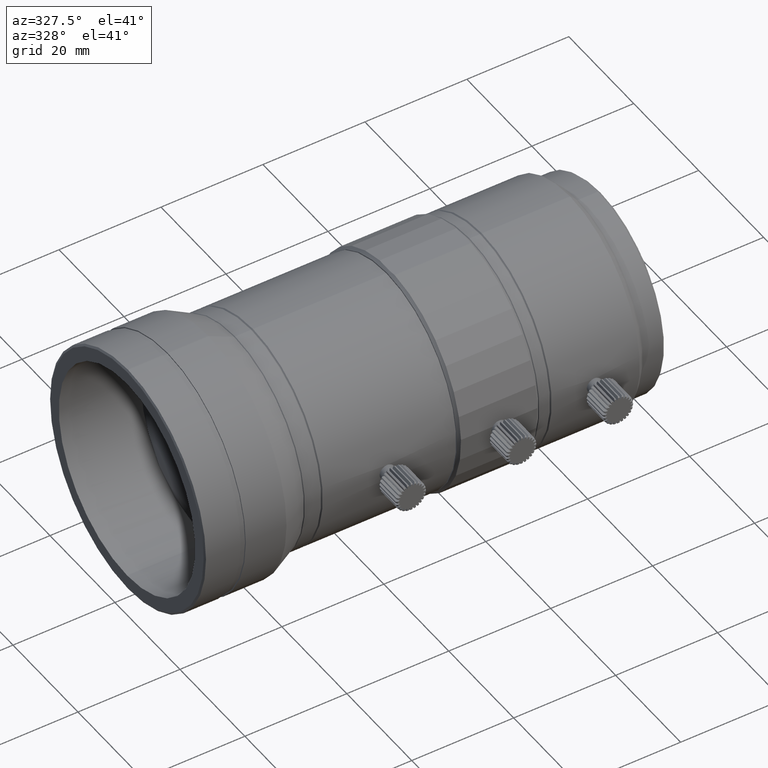
[diagram: clean part render]
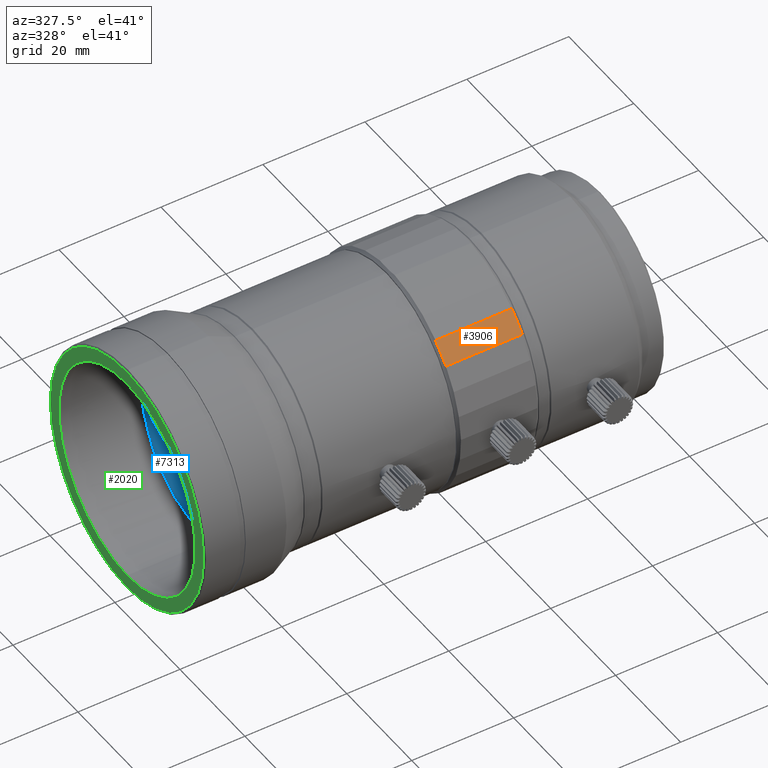
[diagram: same view with three faces highlighted in distinct colors, each labeled with its STEP entity id]
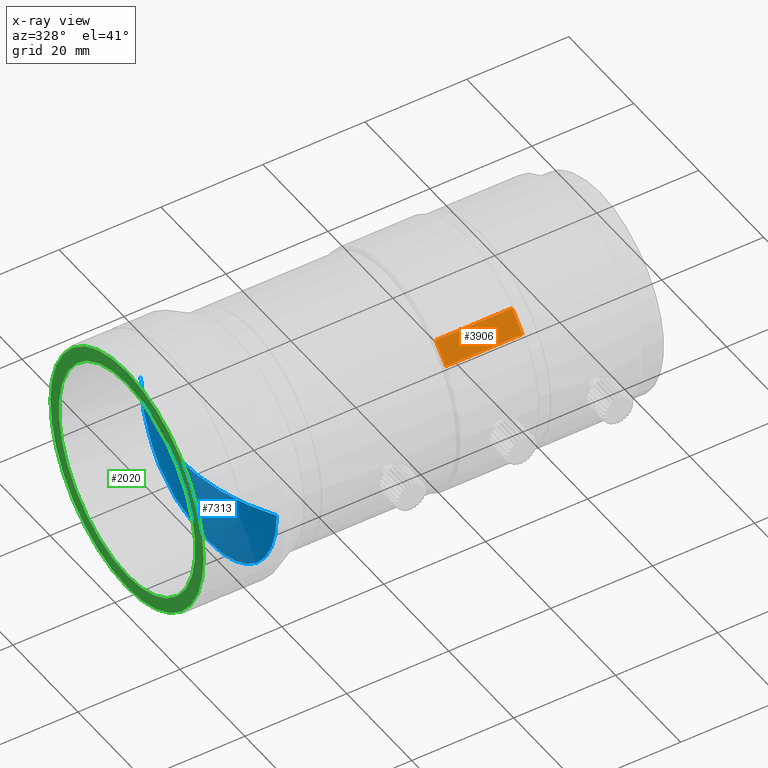
[diagram: x-ray of the same camera — body ghosted, the three highlighted faces saturated]
A machine part, auxiliary view with three faces highlighted in distinct colors.
The next image is the same camera in x-ray (body ghosted, the three faces saturated) — at least one of them is partly hidden behind the body in this view.
Their STEP definitions:

[orange] entity #3906 — the highlighted planar face has unit normal (0, -0.7197, 0.6943).
#108 = CARTESIAN_POINT ( 'NONE',  ( -46.12999999999998835, -17.34346333018421049, 13.53529754806134378 ) ) ;
#404 = FACE_OUTER_BOUND ( 'NONE', #3788, .T. ) ;
#616 = CARTESIAN_POINT ( 'NONE',  ( -46.12999999999999545, -14.15032044589556115, 16.84542760746872858 ) ) ;
#1206 = CARTESIAN_POINT ( 'NONE',  ( -31.13000000000000611, -14.15032044589549010, 16.84542760746879608 ) ) ;
#1462 = EDGE_CURVE ( 'NONE', #15162, #4289, #7521, .T. ) ;
#2187 = DIRECTION ( 'NONE',  ( 1.000000000000000000, -0.000000000000000000, -0.000000000000000000 ) ) ;
#2523 = CARTESIAN_POINT ( 'NONE',  ( -31.13000000000000611, -14.15032044589549010, 16.84542760746879608 ) ) ;
#2585 = CARTESIAN_POINT ( 'NONE',  ( -30.96974907204770489, -16.27908236875463643, 14.63867423453049632 ) ) ;
#2649 = ORIENTED_EDGE ( 'NONE', *, *, #12753, .F. ) ;
#2775 = CARTESIAN_POINT ( 'NONE',  ( -46.12999999999998835, -17.34346333018421049, 13.53529754806134378 ) ) ;
#3788 = EDGE_LOOP ( 'NONE', ( #2649, #11944, #13668, #8107 ) ) ;
#3906 = ADVANCED_FACE ( 'NONE', ( #404 ), #5113, .T. ) ;
#4289 = VERTEX_POINT ( 'NONE', #5461 ) ;
#5113 = PLANE ( 'NONE',  #6270 ) ;
#5461 = CARTESIAN_POINT ( 'NONE',  ( -46.12999999999999545, -14.15032044589556115, 16.84542760746872858 ) ) ;
#5646 = CARTESIAN_POINT ( 'NONE',  ( -31.13000000000000611, -17.34346333018421049, 13.53529754806134378 ) ) ;
#5903 = CARTESIAN_POINT ( 'NONE',  ( -31.13000000000000611, -17.34346333018421049, 13.53529754806134378 ) ) ;
#6019 = DIRECTION ( 'NONE',  ( 1.000000000000000000, -0.000000000000000000, -0.000000000000000000 ) ) ;
#6270 = AXIS2_PLACEMENT_3D ( 'NONE', #13726, #9815, #8659 ) ;
#7521 = B_SPLINE_CURVE_WITH_KNOTS ( 'NONE', 3,
 ( #2775, #11102, #13572, #616 ),
 .UNSPECIFIED., .F., .F.,
 ( 4, 4 ),
 ( 2.778895270411307423E-07, 0.004599530273303731320 ),
 .UNSPECIFIED. ) ;
#8107 = ORIENTED_EDGE ( 'NONE', *, *, #10783, .F. ) ;
#8333 = LINE ( 'NONE', #11877, #15193 ) ;
#8659 = DIRECTION ( 'NONE',  ( 0.000000000000000000, -0.6942743337052080799, -0.7197104623098022902 ) ) ;
#9815 = DIRECTION ( 'NONE',  ( 0.000000000000000000, -0.7197104623098022902, 0.6942743337052080799 ) ) ;
#10341 = VERTEX_POINT ( 'NONE', #2523 ) ;
#10783 = EDGE_CURVE ( 'NONE', #10341, #11549, #10838, .T. ) ;
#10838 = B_SPLINE_CURVE_WITH_KNOTS ( 'NONE', 3,
 ( #1206, #13140, #2585, #5903 ),
 .UNSPECIFIED., .F., .F.,
 ( 4, 4 ),
 ( 2.778895270374293672E-07, 0.004599530273303828465 ),
 .UNSPECIFIED. ) ;
#11102 = CARTESIAN_POINT ( 'NONE',  ( -46.29025092795228602, -16.27908236875466130, 14.63867423453047323 ) ) ;
#11549 = VERTEX_POINT ( 'NONE', #5646 ) ;
#11580 = CARTESIAN_POINT ( 'NONE',  ( -51.22925238377672486, -17.34346333018418918, 13.53529754806136864 ) ) ;
#11651 = LINE ( 'NONE', #11580, #12744 ) ;
#11877 = CARTESIAN_POINT ( 'NONE',  ( -51.22925238377672486, -14.15032044589551319, 16.84542760746877477 ) ) ;
#11944 = ORIENTED_EDGE ( 'NONE', *, *, #1462, .F. ) ;
#12581 = EDGE_CURVE ( 'NONE', #15162, #11549, #11651, .T. ) ;
#12744 = VECTOR ( 'NONE', #2187, 1000.000000000000000 ) ;
#12753 = EDGE_CURVE ( 'NONE', #4289, #10341, #8333, .T. ) ;
#13140 = CARTESIAN_POINT ( 'NONE',  ( -30.96974907204770489, -15.21470140732506415, 15.74205092099964887 ) ) ;
#13572 = CARTESIAN_POINT ( 'NONE',  ( -46.29025092795228602, -15.21470140732511211, 15.74205092099959913 ) ) ;
#13668 = ORIENTED_EDGE ( 'NONE', *, *, #12581, .T. ) ;
#13726 = CARTESIAN_POINT ( 'NONE',  ( -51.22925238377672486, -15.74689188803985651, 15.19036257776506993 ) ) ;
#15162 = VERTEX_POINT ( 'NONE', #108 ) ;
#15193 = VECTOR ( 'NONE', #6019, 1000.000000000000000 ) ;

[blue] entity #7313 — the highlighted spherical surface has radius 40 mm.
#770 = CARTESIAN_POINT ( 'NONE',  ( -47.58591093890157708, -6.938893903907228378E-15, 0.000000000000000000 ) ) ;
#810 = DIRECTION ( 'NONE',  ( 0.000000000000000000, -1.000000000000000000, 1.224646799147353207E-16 ) ) ;
#3098 = DIRECTION ( 'NONE',  ( -1.000000000000000000, -0.000000000000000000, -0.000000000000000000 ) ) ;
#3239 = EDGE_LOOP ( 'NONE', ( #7782, #7476, #15033, #4095 ) ) ;
#3631 = DIRECTION ( 'NONE',  ( 0.000000000000000000, -0.000000000000000000, 1.000000000000000000 ) ) ;
#4095 = ORIENTED_EDGE ( 'NONE', *, *, #13079, .T. ) ;
#4189 = VERTEX_POINT ( 'NONE', #14803 ) ;
#4967 = EDGE_CURVE ( 'NONE', #4189, #10554, #15071, .T. ) ;
#5119 = AXIS2_PLACEMENT_3D ( 'NONE', #14052, #3631, #11647 ) ;
#5660 = CARTESIAN_POINT ( 'NONE',  ( -87.58591093890159129, -4.489600305612521470E-15, 0.000000000000000000 ) ) ;
#5674 = CARTESIAN_POINT ( 'NONE',  ( -81.62999999999999545, 2.571758278209440083E-15, -20.99999999999998579 ) ) ;
#5722 = EDGE_CURVE ( 'NONE', #11061, #14944, #13384, .T. ) ;
#5765 = DIRECTION ( 'NONE',  ( -1.000000000000000000, 0.000000000000000000, 0.000000000000000000 ) ) ;
#6442 = CARTESIAN_POINT ( 'NONE',  ( -81.62999999999998124, -20.99999999999998934, 2.571758278209440083E-15 ) ) ;
#6632 = DIRECTION ( 'NONE',  ( -1.000000000000000000, -0.000000000000000000, -0.000000000000000000 ) ) ;
#6947 = SPHERICAL_SURFACE ( 'NONE', #5119, 40.00000000000000711 ) ;
#7313 = ADVANCED_FACE ( 'NONE', ( #9481 ), #6947, .T. ) ;
#7476 = ORIENTED_EDGE ( 'NONE', *, *, #10218, .T. ) ;
#7737 = DIRECTION ( 'NONE',  ( 0.000000000000000000, 1.224646799147353207E-16, 1.000000000000000000 ) ) ;
#7782 = ORIENTED_EDGE ( 'NONE', *, *, #5722, .F. ) ;
#7790 = DIRECTION ( 'NONE',  ( 0.000000000000000000, 0.000000000000000000, 1.000000000000000000 ) ) ;
#7936 = DIRECTION ( 'NONE',  ( 0.000000000000000000, 0.000000000000000000, 1.000000000000000000 ) ) ;
#9481 = FACE_OUTER_BOUND ( 'NONE', #3239, .T. ) ;
#9601 = AXIS2_PLACEMENT_3D ( 'NONE', #14670, #3098, #7790 ) ;
#10218 = EDGE_CURVE ( 'NONE', #11061, #4189, #13725, .T. ) ;
#10554 = VERTEX_POINT ( 'NONE', #5674 ) ;
#11061 = VERTEX_POINT ( 'NONE', #5660 ) ;
#11432 = CARTESIAN_POINT ( 'NONE',  ( -47.58591093890157708, -6.938893903907228378E-15, 0.000000000000000000 ) ) ;
#11506 = AXIS2_PLACEMENT_3D ( 'NONE', #770, #12787, #5765 ) ;
#11647 = DIRECTION ( 'NONE',  ( 0.000000000000000000, 1.000000000000000000, 0.000000000000000000 ) ) ;
#12787 = DIRECTION ( 'NONE',  ( 0.000000000000000000, 0.000000000000000000, -1.000000000000000000 ) ) ;
#13079 = EDGE_CURVE ( 'NONE', #10554, #14944, #14192, .T. ) ;
#13384 = CIRCLE ( 'NONE', #14622, 40.00000000000000711 ) ;
#13454 = AXIS2_PLACEMENT_3D ( 'NONE', #14891, #6632, #7936 ) ;
#13725 = CIRCLE ( 'NONE', #11506, 40.00000000000000711 ) ;
#14052 = CARTESIAN_POINT ( 'NONE',  ( -47.58591093890157708, -6.938893903907228378E-15, 0.000000000000000000 ) ) ;
#14192 = CIRCLE ( 'NONE', #13454, 20.99999999999998579 ) ;
#14622 = AXIS2_PLACEMENT_3D ( 'NONE', #11432, #7737, #810 ) ;
#14670 = CARTESIAN_POINT ( 'NONE',  ( -81.62999999999999545, 0.000000000000000000, 0.000000000000000000 ) ) ;
#14803 = CARTESIAN_POINT ( 'NONE',  ( -81.62999999999998124, 20.99999999999998224, 0.000000000000000000 ) ) ;
#14891 = CARTESIAN_POINT ( 'NONE',  ( -81.62999999999999545, 0.000000000000000000, 0.000000000000000000 ) ) ;
#14944 = VERTEX_POINT ( 'NONE', #6442 ) ;
#15033 = ORIENTED_EDGE ( 'NONE', *, *, #4967, .T. ) ;
#15071 = CIRCLE ( 'NONE', #9601, 20.99999999999998579 ) ;

[green] entity #2020 — the highlighted planar face has unit normal (-1, 0, 0).
#111 = AXIS2_PLACEMENT_3D ( 'NONE', #1874, #3497, #12737 ) ;
#626 = DIRECTION ( 'NONE',  ( 1.000000000000000000, -0.000000000000000000, -0.000000000000000000 ) ) ;
#821 = AXIS2_PLACEMENT_3D ( 'NONE', #3144, #1991, #11453 ) ;
#940 = CIRCLE ( 'NONE', #8769, 20.99999999999998579 ) ;
#986 = ORIENTED_EDGE ( 'NONE', *, *, #14046, .F. ) ;
#1653 = CARTESIAN_POINT ( 'NONE',  ( -97.62999999999999545, 0.000000000000000000, 0.000000000000000000 ) ) ;
#1828 = VERTEX_POINT ( 'NONE', #10919 ) ;
#1857 = ORIENTED_EDGE ( 'NONE', *, *, #10930, .F. ) ;
#1874 = CARTESIAN_POINT ( 'NONE',  ( -97.62999999999999545, 0.000000000000000000, 0.000000000000000000 ) ) ;
#1991 = DIRECTION ( 'NONE',  ( -1.000000000000000000, 0.000000000000000000, 0.000000000000000000 ) ) ;
#2020 = ADVANCED_FACE ( 'NONE', ( #7988, #11537 ), #11314, .T. ) ;
#2308 = EDGE_CURVE ( 'NONE', #1828, #13662, #14399, .T. ) ;
#3136 = CIRCLE ( 'NONE', #11750, 23.60000000000002274 ) ;
#3144 = CARTESIAN_POINT ( 'NONE',  ( -97.62999999999999545, 23.60000000000002274, 0.000000000000000000 ) ) ;
#3497 = DIRECTION ( 'NONE',  ( -1.000000000000000000, -0.000000000000000000, -0.000000000000000000 ) ) ;
#3915 = CARTESIAN_POINT ( 'NONE',  ( -97.62999999999999545, 0.000000000000000000, -23.60000000000002274 ) ) ;
#4079 = CARTESIAN_POINT ( 'NONE',  ( -97.62999999999999545, 0.000000000000000000, 0.000000000000000000 ) ) ;
#5409 = DIRECTION ( 'NONE',  ( 0.000000000000000000, 0.000000000000000000, -1.000000000000000000 ) ) ;
#6150 = ORIENTED_EDGE ( 'NONE', *, *, #14421, .F. ) ;
#6448 = EDGE_LOOP ( 'NONE', ( #6150, #6810 ) ) ;
#6535 = DIRECTION ( 'NONE',  ( 0.000000000000000000, 0.000000000000000000, 1.000000000000000000 ) ) ;
#6810 = ORIENTED_EDGE ( 'NONE', *, *, #2308, .F. ) ;
#7241 = EDGE_LOOP ( 'NONE', ( #986, #1857 ) ) ;
#7728 = CARTESIAN_POINT ( 'NONE',  ( -97.62999999999999545, 0.000000000000000000, 20.99999999999998579 ) ) ;
#7988 = FACE_BOUND ( 'NONE', #6448, .T. ) ;
#8078 = CIRCLE ( 'NONE', #12009, 23.60000000000002274 ) ;
#8769 = AXIS2_PLACEMENT_3D ( 'NONE', #4079, #13331, #6535 ) ;
#9824 = CARTESIAN_POINT ( 'NONE',  ( -97.62999999999999545, 2.914659381970701180E-15, 23.60000000000002274 ) ) ;
#9900 = DIRECTION ( 'NONE',  ( 1.000000000000000000, -0.000000000000000000, -0.000000000000000000 ) ) ;
#10883 = VERTEX_POINT ( 'NONE', #9824 ) ;
#10919 = CARTESIAN_POINT ( 'NONE',  ( -97.62999999999999545, 2.571758278209440083E-15, -20.99999999999998579 ) ) ;
#10930 = EDGE_CURVE ( 'NONE', #10883, #11741, #8078, .T. ) ;
#11030 = CARTESIAN_POINT ( 'NONE',  ( -97.62999999999999545, 0.000000000000000000, 0.000000000000000000 ) ) ;
#11314 = PLANE ( 'NONE',  #821 ) ;
#11453 = DIRECTION ( 'NONE',  ( 0.000000000000000000, 0.000000000000000000, 1.000000000000000000 ) ) ;
#11537 = FACE_OUTER_BOUND ( 'NONE', #7241, .T. ) ;
#11741 = VERTEX_POINT ( 'NONE', #3915 ) ;
#11750 = AXIS2_PLACEMENT_3D ( 'NONE', #11030, #626, #5409 ) ;
#12009 = AXIS2_PLACEMENT_3D ( 'NONE', #1653, #9900, #14615 ) ;
#12737 = DIRECTION ( 'NONE',  ( 0.000000000000000000, 0.000000000000000000, 1.000000000000000000 ) ) ;
#13331 = DIRECTION ( 'NONE',  ( -1.000000000000000000, -0.000000000000000000, -0.000000000000000000 ) ) ;
#13662 = VERTEX_POINT ( 'NONE', #7728 ) ;
#14046 = EDGE_CURVE ( 'NONE', #11741, #10883, #3136, .T. ) ;
#14399 = CIRCLE ( 'NONE', #111, 20.99999999999998579 ) ;
#14421 = EDGE_CURVE ( 'NONE', #13662, #1828, #940, .T. ) ;
#14615 = DIRECTION ( 'NONE',  ( 0.000000000000000000, 0.000000000000000000, -1.000000000000000000 ) ) ;